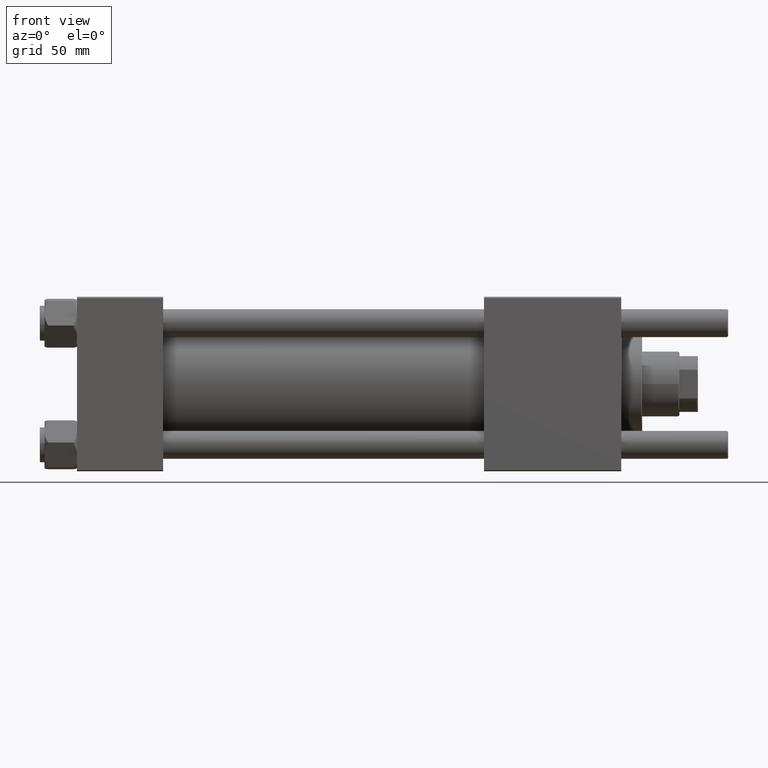
[diagram: clean part render]
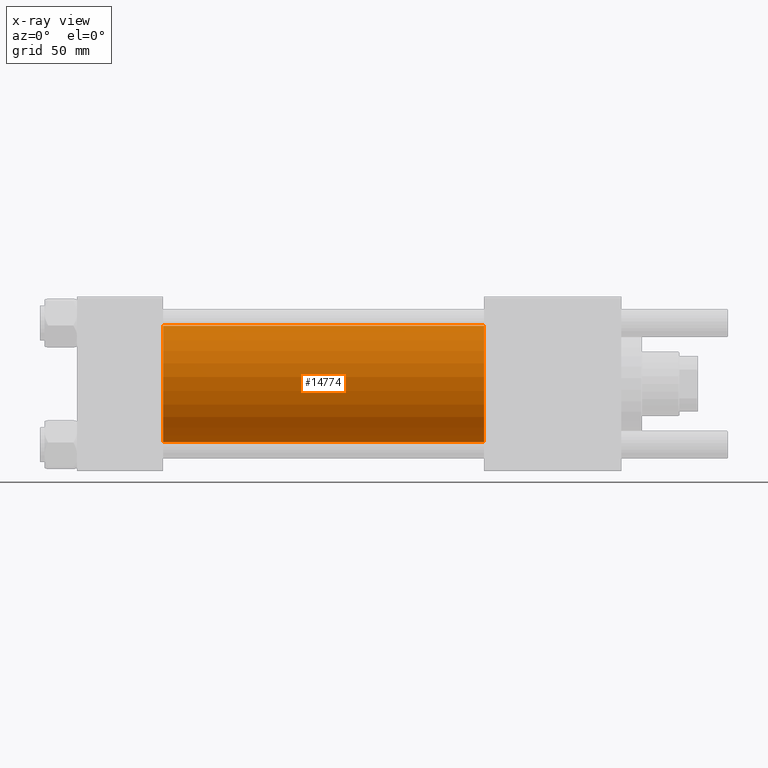
[diagram: x-ray — body ghosted, one internal face saturated and labeled with its STEP entity id]
A machine part, front view, then the same camera in x-ray: the body is ghosted and one INTERNAL B-rep face — a face not visible from any outside direction — is saturated and labeled: STEP entity #14774.
In plain terms, the highlighted cylindrical surface (partial cylindrical patch) has radius 25 mm, axis along (-1, -0, -0).
Its self-contained STEP definition (entity closure, byte-faithful):
#4053 = CARTESIAN_POINT ( 'NONE',  ( 37.00000000000000000, 4.595317839031724996E-16, -25.00000000000000000 ) ) ;
#7518 = VECTOR ( 'NONE', #21268, 1000.000000000000000 ) ;
#8302 = CARTESIAN_POINT ( 'NONE',  ( 175.0000000000000284, 4.595317839031724996E-16, -25.00000000000000000 ) ) ;
#10942 = EDGE_CURVE ( 'NONE', #38782, #24806, #11067, .T. ) ;
#11067 = CIRCLE ( 'NONE', #23015, 25.00000000000000000 ) ;
#11836 = DIRECTION ( 'NONE',  ( 0.000000000000000000, 0.000000000000000000, -1.000000000000000000 ) ) ;
#12467 = AXIS2_PLACEMENT_3D ( 'NONE', #25821, #39345, #56869 ) ;
#14774 = ADVANCED_FACE ( 'NONE', ( #55739 ), #21780, .F. ) ;
#14801 = CARTESIAN_POINT ( 'NONE',  ( 175.0000000000000284, -2.602085213965210642E-15, 25.00000000000000000 ) ) ;
#15149 = CARTESIAN_POINT ( 'NONE',  ( 175.0000000000000284, 4.595317839031724996E-16, -25.00000000000000000 ) ) ;
#15389 = ORIENTED_EDGE ( 'NONE', *, *, #22565, .T. ) ;
#18491 = CARTESIAN_POINT ( 'NONE',  ( 175.0000000000000284, -2.602085213965210642E-15, 25.00000000000000000 ) ) ;
#18896 = VERTEX_POINT ( 'NONE', #18491 ) ;
#19602 = ORIENTED_EDGE ( 'NONE', *, *, #10942, .F. ) ;
#21268 = DIRECTION ( 'NONE',  ( -1.000000000000000000, -0.000000000000000000, -0.000000000000000000 ) ) ;
#21409 = EDGE_CURVE ( 'NONE', #49144, #24806, #30180, .T. ) ;
#21780 = CYLINDRICAL_SURFACE ( 'NONE', #12467, 25.00000000000000000 ) ;
#22565 = EDGE_CURVE ( 'NONE', #18896, #49144, #25954, .T. ) ;
#23015 = AXIS2_PLACEMENT_3D ( 'NONE', #39478, #25397, #42941 ) ;
#24806 = VERTEX_POINT ( 'NONE', #4053 ) ;
#25397 = DIRECTION ( 'NONE',  ( 1.000000000000000000, 0.000000000000000000, 0.000000000000000000 ) ) ;
#25821 = CARTESIAN_POINT ( 'NONE',  ( 175.0000000000000284, -2.602085213965210642E-15, 0.000000000000000000 ) ) ;
#25954 = CIRCLE ( 'NONE', #45269, 25.00000000000000000 ) ;
#29252 = CARTESIAN_POINT ( 'NONE',  ( 37.00000000000000000, -2.602085213965210642E-15, 25.00000000000000000 ) ) ;
#29705 = ORIENTED_EDGE ( 'NONE', *, *, #52861, .F. ) ;
#30180 = LINE ( 'NONE', #8302, #7518 ) ;
#33508 = ORIENTED_EDGE ( 'NONE', *, *, #21409, .T. ) ;
#33699 = CARTESIAN_POINT ( 'NONE',  ( 175.0000000000000284, -2.602085213965210642E-15, 0.000000000000000000 ) ) ;
#36373 = LINE ( 'NONE', #14801, #47411 ) ;
#38782 = VERTEX_POINT ( 'NONE', #29252 ) ;
#39345 = DIRECTION ( 'NONE',  ( -1.000000000000000000, -0.000000000000000000, -0.000000000000000000 ) ) ;
#39478 = CARTESIAN_POINT ( 'NONE',  ( 37.00000000000000000, -2.602085213965210642E-15, 0.000000000000000000 ) ) ;
#42941 = DIRECTION ( 'NONE',  ( 0.000000000000000000, 0.000000000000000000, -1.000000000000000000 ) ) ;
#45269 = AXIS2_PLACEMENT_3D ( 'NONE', #33699, #47221, #11836 ) ;
#47221 = DIRECTION ( 'NONE',  ( 1.000000000000000000, 0.000000000000000000, 0.000000000000000000 ) ) ;
#47411 = VECTOR ( 'NONE', #53903, 1000.000000000000000 ) ;
#49144 = VERTEX_POINT ( 'NONE', #15149 ) ;
#49841 = EDGE_LOOP ( 'NONE', ( #15389, #33508, #19602, #29705 ) ) ;
#52861 = EDGE_CURVE ( 'NONE', #18896, #38782, #36373, .T. ) ;
#53903 = DIRECTION ( 'NONE',  ( -1.000000000000000000, -0.000000000000000000, -0.000000000000000000 ) ) ;
#55739 = FACE_OUTER_BOUND ( 'NONE', #49841, .T. ) ;
#56869 = DIRECTION ( 'NONE',  ( 0.000000000000000000, 0.000000000000000000, 1.000000000000000000 ) ) ;